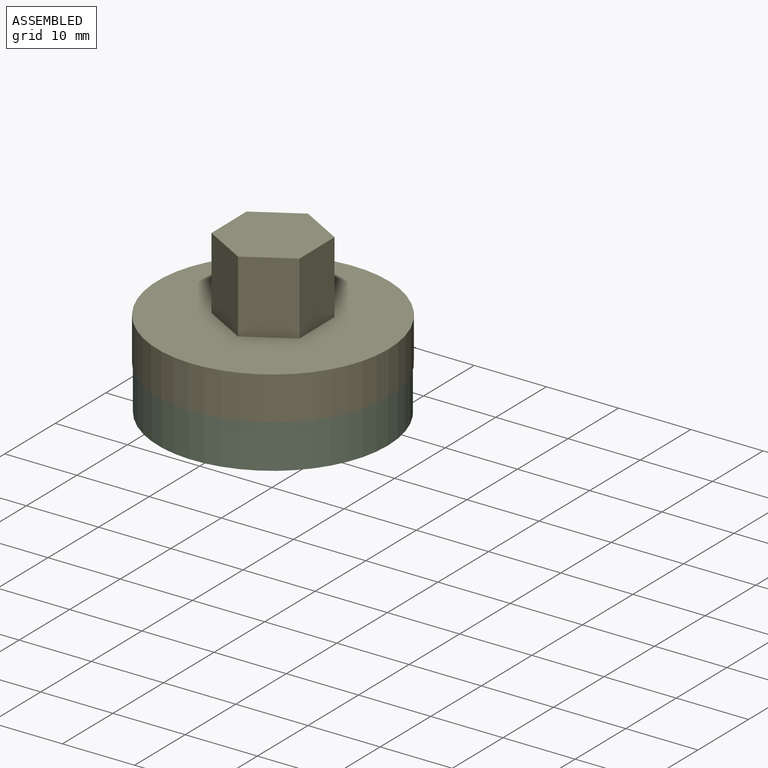
[diagram: assembled view]
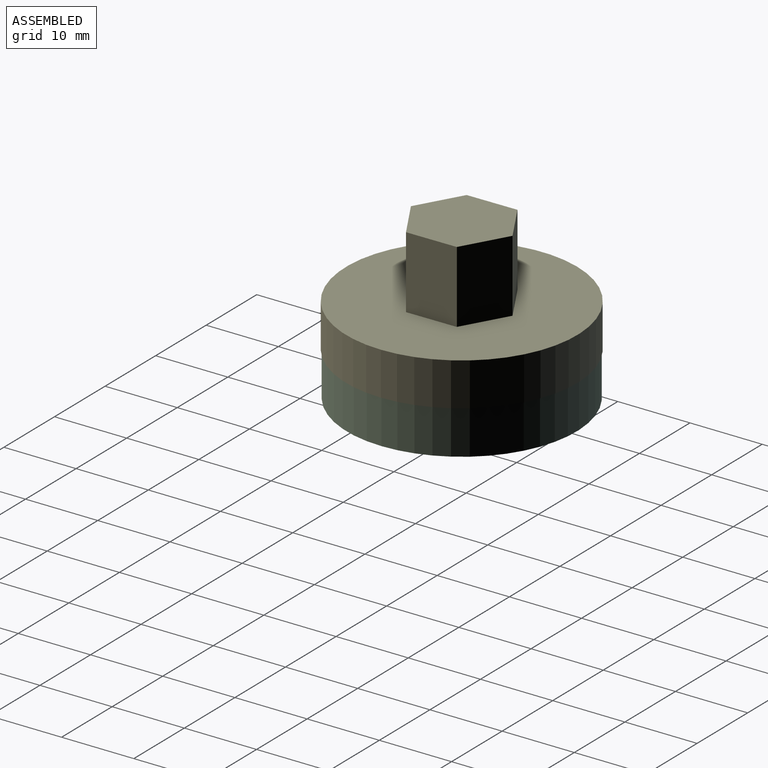
[diagram: assembled view, second angle]
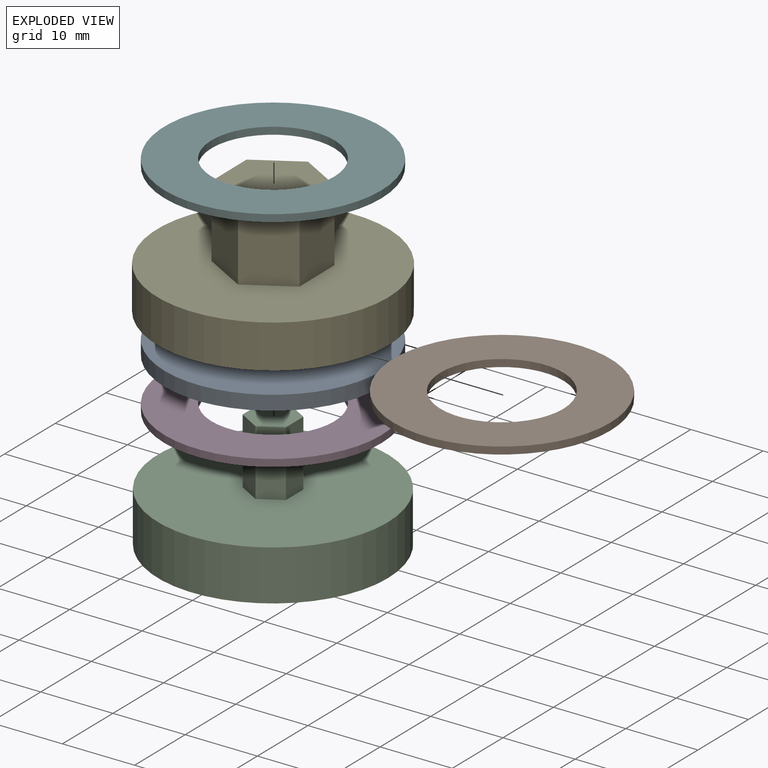
[diagram: exploded view]
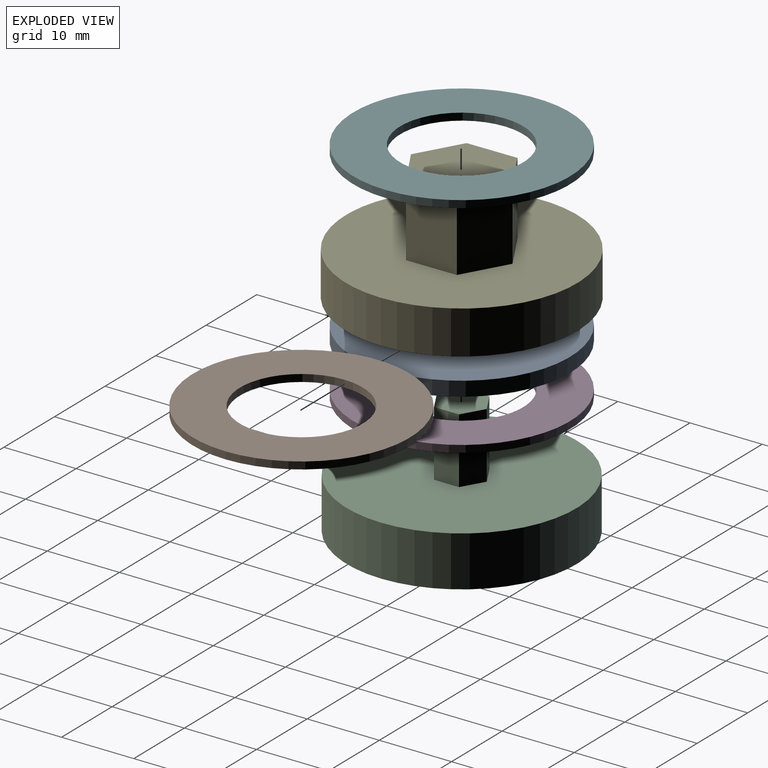
[diagram: exploded view, second angle]
ASSEMBLY  parts=6 mates=4
PART A: 4 faces, bbox 30x30x2 mm
  f0: cylinder r=6mm len=12mm, axis (0,0,-1), area 75.4mm2, adj f2,f3
  f1: cylinder r=15mm len=30mm, axis (0,0,-1), area 188.5mm2, adj f2,f3
  f2: plane 30x30mm, normal (0,0,1), area 593.8mm2, adj f0,f1
  f3: plane 30x30mm, normal (0,0,-1), area 593.8mm2, adj f0,f1
PART B: 4 faces, bbox 30x30x1 mm
  f0: cylinder r=8.5mm len=17mm, axis (0,0,-1), area 53.4mm2, adj f2,f3
  f1: cylinder r=15mm len=30mm, axis (0,0,-1), area 94.2mm2, adj f2,f3
  f2: plane 30x30mm, normal (0,0,1), area 479.9mm2, adj f0,f1
  f3: plane 30x30mm, normal (0,0,-1), area 479.9mm2, adj f0,f1
PART C: 12 faces, bbox 31.8x31.8x16.1 mm
  f0: plane 31.8x31.8mm, normal (0,0,1), area 763mm2, adj f1,f5,f6,f7,f8,f9,f10
  f1: cylinder r=15.9mm len=31.8mm, axis (0,0,-1), area 699.3mm2, adj f0,f2
  f2: plane 31.8x31.8mm, normal (0,0,-1), area 699.2mm2, adj f1,f3
  f3: cylinder r=5.5mm len=11mm, axis (0,0,-1), area 210.8mm2, adj f2,f4
  f4: plane 11x11mm, normal (0,0,-1), area 95mm2, adj f3
  f5: plane 9.1x3mm, normal (-0.5,0.87,0), area 31.5mm2, adj f0,f6,f10,f11
  f6: plane 9.1x3.46mm, normal (-1,0,0), area 31.5mm2, adj f0,f5,f7,f11
  f7: plane 9.1x3mm, normal (-0.5,-0.87,0), area 31.5mm2, adj f0,f6,f8,f11
  f8: plane 9.1x3mm, normal (0.5,-0.87,0), area 31.5mm2, adj f0,f7,f9,f11
  f9: plane 9.1x3.46mm, normal (1,0,0), area 31.5mm2, adj f0,f8,f10,f11
  f10: plane 9.1x3mm, normal (0.5,0.87,0), area 31.5mm2, adj f0,f5,f9,f11
  f11: plane 6.93x6mm, normal (0,0,1), area 31.2mm2, adj f5,f6,f7,f8,f9,f10
PART D: same geometry as B
PART E: 27 faces, bbox 32x32x16 mm
  f0: cylinder r=16mm len=32mm, axis (0,0,-1), area 603.2mm2, adj f1,f10
  f1: plane 32x32mm, normal (0,0,1), area 676.9mm2, adj f0,f2,f3,f4,f5,f6,f7
  f2: plane 10x6.04mm, normal (-0.51,0.86,0), area 70mm2, adj f1,f3,f7,f8
  f3: plane 10x7mm, normal (-1,-0.01,0), area 70mm2, adj f1,f2,f4,f8
  f4: plane 10x6.09mm, normal (-0.49,-0.87,0), area 70mm2, adj f1,f3,f5,f8
  f5: plane 10x6.04mm, normal (0.51,-0.86,0), area 70mm2, adj f1,f4,f6,f8
  f6: plane 10x7mm, normal (1,0.01,0), area 70mm2, adj f1,f5,f7,f8
  f7: plane 10x6.09mm, normal (0.49,0.87,0), area 70mm2, adj f1,f2,f6,f8
  f8: plane 14x12.18mm, normal (0,0,1), area 127.3mm2, adj f2,f3,f4,f5,f6,f7
  f9: cylinder r=15.03mm len=30.05mm, axis (0,0,1), area 377.6mm2, adj f10,f13
  f10: plane 32x32mm, normal (0,0,-1), area 95mm2, adj f0,f9
  f11: plane 17x17mm, normal (0,0,-1), area 183.9mm2, adj f12,f21,f22,f23,f24,f25,f26
  f12: cylinder r=8.5mm len=17mm, axis (0,0,1), area 213.6mm2, adj f11,f13
  f13: plane 30.05x30.05mm, normal (0,0,-1), area 482.2mm2, adj f9,f12
  f14: plane 9.5x3.03mm, normal (-0.5,0.87,0), area 33.2mm2, adj f15,f19,f20,f23
  f15: plane 9.5x3.02mm, normal (0.5,0.87,0), area 33.2mm2, adj f14,f16,f20,f21
  f16: plane 9.5x3.49mm, normal (1,0,0), area 33.2mm2, adj f15,f17,f20,f22
  f17: plane 9.5x3.03mm, normal (0.5,-0.87,0), area 33.2mm2, adj f16,f18,f20,f24
  f18: plane 9.5x3.02mm, normal (-0.5,-0.87,0), area 33.2mm2, adj f17,f19,f20,f26
  f19: plane 9.5x3.49mm, normal (-1,0,0), area 33.2mm2, adj f14,f18,f20,f25
  f20: plane 6.99x6.06mm, normal (0,0,-1), area 31.7mm2, adj f14,f15,f16,f17,f18,f19
  f21: cylinder r=0.5mm len=3.77mm, axis (0.87,-0.5,0), area 2.9mm2, adj f11,f15,f22,f23
  f22: cylinder r=0.5mm len=4.07mm, axis (0,-1,0), area 2.9mm2, adj f11,f16,f21,f24
  f23: cylinder r=0.5mm len=3.78mm, axis (0.87,0.5,0), area 2.9mm2, adj f11,f14,f21,f25
  f24: cylinder r=0.5mm len=3.78mm, axis (-0.87,-0.5,0), area 2.9mm2, adj f11,f17,f22,f26
  f25: cylinder r=0.5mm len=4.07mm, axis (0,1,0), area 2.9mm2, adj f11,f19,f23,f26
  f26: cylinder r=0.5mm len=3.77mm, axis (-0.87,0.5,0), area 2.9mm2, adj f11,f18,f24,f25
PART F: same geometry as B
PLACE A t=(-30.22,-23.75,13.47)mm
PLACE B t=(-30.22,-23.75,16.47)mm
PLACE C t=(-30.22,-23.75,6.37)mm
PLACE D t=(-30.22,-23.75,12.47)mm
PLACE E t=(-30.22,-23.75,16.47)mm
PLACE F t=(-30.22,-23.75,15.47)mm
MATE fastened A.f1 <-> E.f9  axis (0,0,-1) through (-30.22,-23.75,14.47)mm
MATE fastened E.f12 <-> C.f3  axis (0,0,-1) through (-30.22,-23.75,22.47)mm
MATE fastened A.f1 <-> D.f1  axis (0,0,-1) through (-30.22,-23.75,13.47)mm
MATE fastened A.f1 <-> F.f1  axis (0,0,1) through (-30.22,-23.75,15.47)mm
